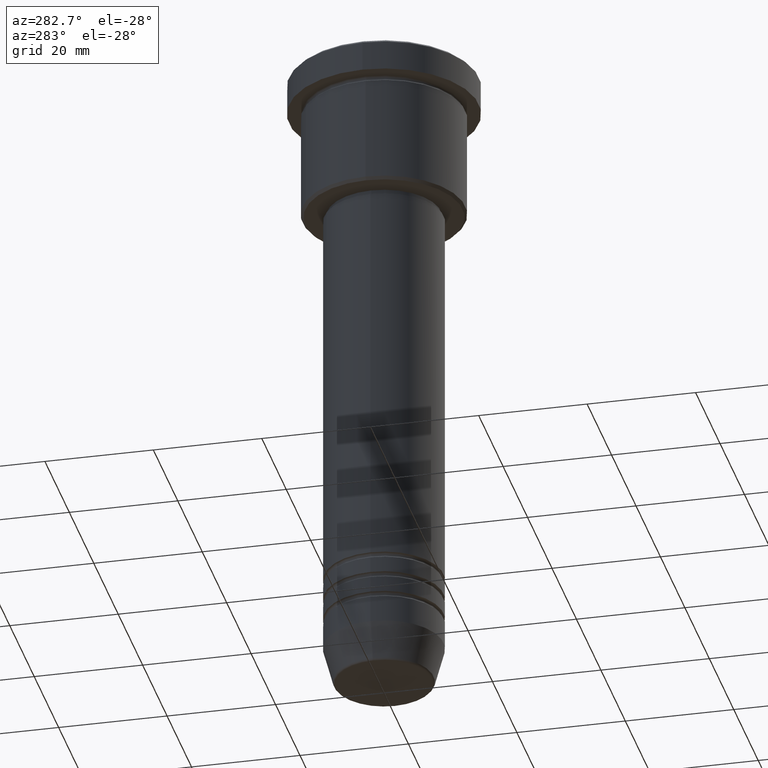
[diagram: clean part render]
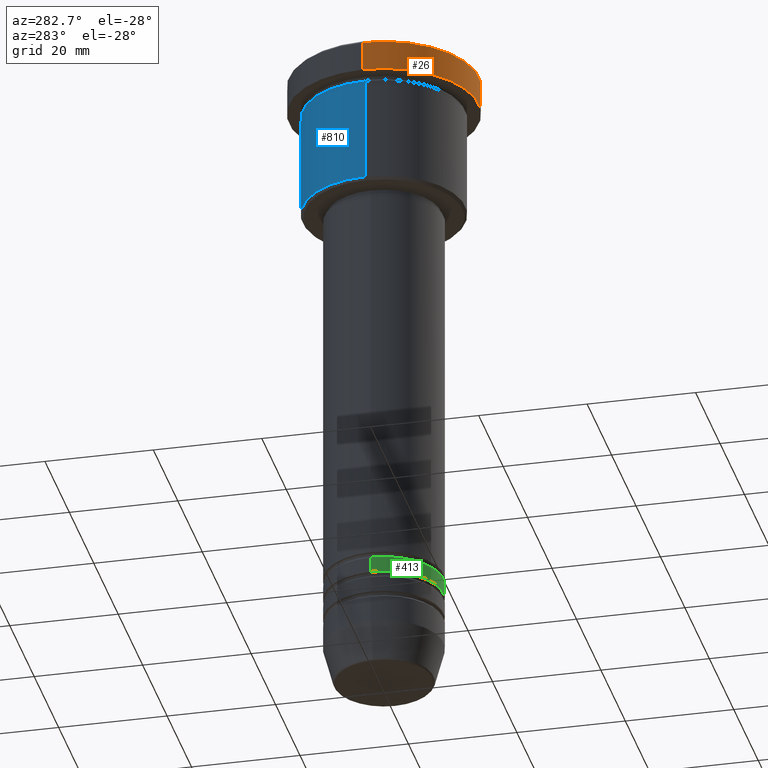
[diagram: same view with three faces highlighted in distinct colors, each labeled with its STEP entity id]
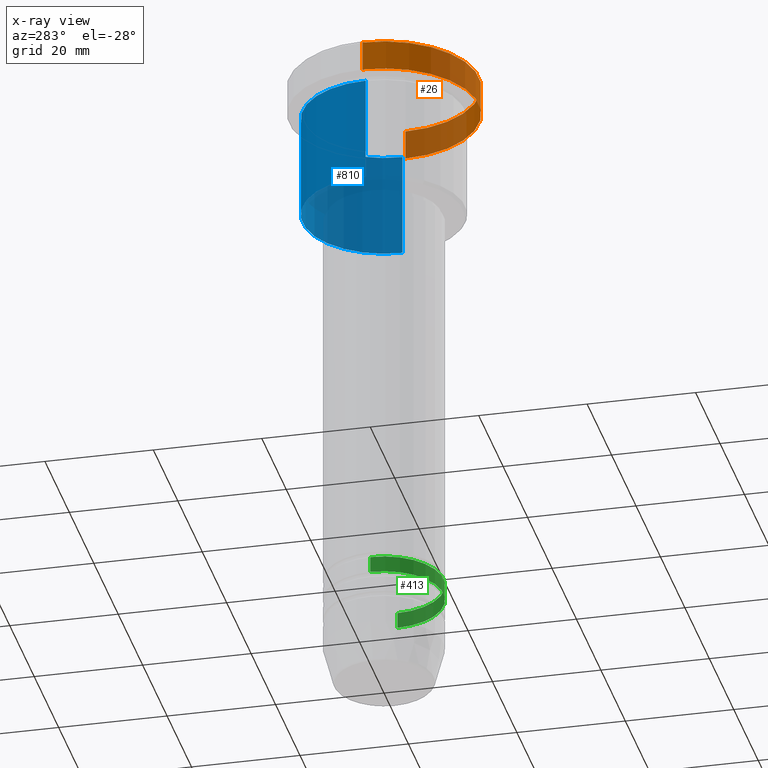
[diagram: x-ray of the same camera — body ghosted, the three highlighted faces saturated]
A machine part, auxiliary view with three faces highlighted in distinct colors.
The next image is the same camera in x-ray (body ghosted, the three faces saturated) — at least one of them is partly hidden behind the body in this view.
Their STEP definitions:

[orange] entity #26 — the highlighted cylindrical surface (partial cylindrical patch) has radius 17.5 mm, axis along (-0, -0, 1).
#5 = DIRECTION ( 'NONE',  ( -0.000000000000000000, -0.000000000000000000, 1.000000000000000000 ) ) ;
#25 = CARTESIAN_POINT ( 'NONE',  ( 17.50000000000000000, 0.000000000000000000, -5.999999999999995559 ) ) ;
#26 = ADVANCED_FACE ( 'NONE', ( #980 ), #165, .T. ) ;
#59 = CARTESIAN_POINT ( 'NONE',  ( -17.50000000000000000, 2.143131898507868248E-15, -5.999999999999995559 ) ) ;
#70 = AXIS2_PLACEMENT_3D ( 'NONE', #519, #228, #1147 ) ;
#72 = CARTESIAN_POINT ( 'NONE',  ( 17.50000000000000000, 0.000000000000000000, 0.000000000000000000 ) ) ;
#87 = EDGE_CURVE ( 'NONE', #558, #246, #186, .T. ) ;
#137 = CARTESIAN_POINT ( 'NONE',  ( -17.50000000000000000, 2.143131898507868248E-15, -0.5000000000000004441 ) ) ;
#156 = DIRECTION ( 'NONE',  ( -0.000000000000000000, -0.000000000000000000, 1.000000000000000000 ) ) ;
#165 = CYLINDRICAL_SURFACE ( 'NONE', #70, 17.50000000000000000 ) ;
#186 = LINE ( 'NONE', #713, #586 ) ;
#228 = DIRECTION ( 'NONE',  ( -0.000000000000000000, -0.000000000000000000, 1.000000000000000000 ) ) ;
#246 = VERTEX_POINT ( 'NONE', #137 ) ;
#351 = CARTESIAN_POINT ( 'NONE',  ( 0.000000000000000000, 0.000000000000000000, -0.5000000000000004441 ) ) ;
#372 = ORIENTED_EDGE ( 'NONE', *, *, #996, .T. ) ;
#419 = CIRCLE ( 'NONE', #694, 17.50000000000000000 ) ;
#452 = ORIENTED_EDGE ( 'NONE', *, *, #619, .T. ) ;
#460 = AXIS2_PLACEMENT_3D ( 'NONE', #351, #994, #839 ) ;
#470 = EDGE_CURVE ( 'NONE', #558, #1146, #419, .T. ) ;
#519 = CARTESIAN_POINT ( 'NONE',  ( 0.000000000000000000, 0.000000000000000000, 0.000000000000000000 ) ) ;
#524 = CARTESIAN_POINT ( 'NONE',  ( 17.50000000000000000, 0.000000000000000000, -0.5000000000000004441 ) ) ;
#558 = VERTEX_POINT ( 'NONE', #59 ) ;
#576 = DIRECTION ( 'NONE',  ( -0.000000000000000000, -0.000000000000000000, 1.000000000000000000 ) ) ;
#586 = VECTOR ( 'NONE', #5, 1000.000000000000000 ) ;
#619 = EDGE_CURVE ( 'NONE', #929, #246, #1151, .T. ) ;
#694 = AXIS2_PLACEMENT_3D ( 'NONE', #790, #576, #1154 ) ;
#713 = CARTESIAN_POINT ( 'NONE',  ( -17.50000000000000000, 2.143131898507868248E-15, 0.000000000000000000 ) ) ;
#749 = VECTOR ( 'NONE', #156, 1000.000000000000000 ) ;
#790 = CARTESIAN_POINT ( 'NONE',  ( 0.000000000000000000, 0.000000000000000000, -5.999999999999995559 ) ) ;
#839 = DIRECTION ( 'NONE',  ( 1.000000000000000000, 0.000000000000000000, 0.000000000000000000 ) ) ;
#874 = ORIENTED_EDGE ( 'NONE', *, *, #470, .T. ) ;
#911 = LINE ( 'NONE', #72, #749 ) ;
#929 = VERTEX_POINT ( 'NONE', #524 ) ;
#980 = FACE_OUTER_BOUND ( 'NONE', #1030, .T. ) ;
#994 = DIRECTION ( 'NONE',  ( 0.000000000000000000, 0.000000000000000000, -1.000000000000000000 ) ) ;
#996 = EDGE_CURVE ( 'NONE', #1146, #929, #911, .T. ) ;
#1026 = ORIENTED_EDGE ( 'NONE', *, *, #87, .F. ) ;
#1030 = EDGE_LOOP ( 'NONE', ( #1026, #874, #372, #452 ) ) ;
#1146 = VERTEX_POINT ( 'NONE', #25 ) ;
#1147 = DIRECTION ( 'NONE',  ( 1.000000000000000000, 0.000000000000000000, 0.000000000000000000 ) ) ;
#1151 = CIRCLE ( 'NONE', #460, 17.50000000000000000 ) ;
#1154 = DIRECTION ( 'NONE',  ( 1.000000000000000000, 0.000000000000000000, 0.000000000000000000 ) ) ;

[blue] entity #810 — the highlighted cylindrical surface (partial cylindrical patch) has radius 15 mm, axis along (-0, -0, 1).
#68 = CARTESIAN_POINT ( 'NONE',  ( 15.00000000000000000, 0.000000000000000000, -26.49999999999998224 ) ) ;
#85 = CIRCLE ( 'NONE', #493, 15.00000000000000000 ) ;
#113 = EDGE_CURVE ( 'NONE', #450, #899, #848, .T. ) ;
#145 = LINE ( 'NONE', #428, #984 ) ;
#226 = CARTESIAN_POINT ( 'NONE',  ( 15.00000000000000000, 0.000000000000000000, 0.000000000000000000 ) ) ;
#251 = CARTESIAN_POINT ( 'NONE',  ( 0.000000000000000000, 0.000000000000000000, -6.999999999999995559 ) ) ;
#255 = DIRECTION ( 'NONE',  ( -0.000000000000000000, -0.000000000000000000, 1.000000000000000000 ) ) ;
#287 = DIRECTION ( 'NONE',  ( -0.000000000000000000, -0.000000000000000000, 1.000000000000000000 ) ) ;
#300 = EDGE_CURVE ( 'NONE', #450, #641, #646, .T. ) ;
#360 = ORIENTED_EDGE ( 'NONE', *, *, #756, .T. ) ;
#428 = CARTESIAN_POINT ( 'NONE',  ( -15.00000000000000000, 1.836970198721029589E-15, 0.000000000000000000 ) ) ;
#450 = VERTEX_POINT ( 'NONE', #68 ) ;
#461 = DIRECTION ( 'NONE',  ( 1.000000000000000000, 0.000000000000000000, 0.000000000000000000 ) ) ;
#493 = AXIS2_PLACEMENT_3D ( 'NONE', #251, #717, #1158 ) ;
#531 = AXIS2_PLACEMENT_3D ( 'NONE', #913, #287, #461 ) ;
#532 = FACE_OUTER_BOUND ( 'NONE', #1110, .T. ) ;
#590 = ORIENTED_EDGE ( 'NONE', *, *, #113, .F. ) ;
#641 = VERTEX_POINT ( 'NONE', #784 ) ;
#646 = CIRCLE ( 'NONE', #903, 15.00000000000000000 ) ;
#668 = CARTESIAN_POINT ( 'NONE',  ( -15.00000000000000000, 1.836970198721029589E-15, -6.999999999999995559 ) ) ;
#708 = ORIENTED_EDGE ( 'NONE', *, *, #951, .F. ) ;
#717 = DIRECTION ( 'NONE',  ( -0.000000000000000000, -0.000000000000000000, 1.000000000000000000 ) ) ;
#756 = EDGE_CURVE ( 'NONE', #641, #888, #145, .T. ) ;
#784 = CARTESIAN_POINT ( 'NONE',  ( -15.00000000000000000, 1.836970198721029589E-15, -26.49999999999998224 ) ) ;
#810 = ADVANCED_FACE ( 'NONE', ( #532 ), #939, .T. ) ;
#838 = ORIENTED_EDGE ( 'NONE', *, *, #300, .T. ) ;
#848 = LINE ( 'NONE', #226, #1166 ) ;
#880 = CARTESIAN_POINT ( 'NONE',  ( 0.000000000000000000, 0.000000000000000000, -26.49999999999998224 ) ) ;
#888 = VERTEX_POINT ( 'NONE', #668 ) ;
#899 = VERTEX_POINT ( 'NONE', #1037 ) ;
#903 = AXIS2_PLACEMENT_3D ( 'NONE', #880, #255, #1071 ) ;
#913 = CARTESIAN_POINT ( 'NONE',  ( 0.000000000000000000, 0.000000000000000000, 0.000000000000000000 ) ) ;
#939 = CYLINDRICAL_SURFACE ( 'NONE', #531, 15.00000000000000000 ) ;
#951 = EDGE_CURVE ( 'NONE', #899, #888, #85, .T. ) ;
#984 = VECTOR ( 'NONE', #1141, 1000.000000000000000 ) ;
#1037 = CARTESIAN_POINT ( 'NONE',  ( 15.00000000000000000, 0.000000000000000000, -6.999999999999995559 ) ) ;
#1071 = DIRECTION ( 'NONE',  ( -1.000000000000000000, 0.000000000000000000, 0.000000000000000000 ) ) ;
#1075 = DIRECTION ( 'NONE',  ( -0.000000000000000000, -0.000000000000000000, 1.000000000000000000 ) ) ;
#1110 = EDGE_LOOP ( 'NONE', ( #838, #360, #708, #590 ) ) ;
#1141 = DIRECTION ( 'NONE',  ( -0.000000000000000000, -0.000000000000000000, 1.000000000000000000 ) ) ;
#1158 = DIRECTION ( 'NONE',  ( 1.000000000000000000, 0.000000000000000000, 0.000000000000000000 ) ) ;
#1166 = VECTOR ( 'NONE', #1075, 1000.000000000000000 ) ;

[green] entity #413 — the highlighted cylindrical surface (partial cylindrical patch) has radius 11 mm, axis along (-0, -0, 1).
#78 = ORIENTED_EDGE ( 'NONE', *, *, #636, .F. ) ;
#110 = CYLINDRICAL_SURFACE ( 'NONE', #807, 11.00000000000000178 ) ;
#115 = ORIENTED_EDGE ( 'NONE', *, *, #167, .F. ) ;
#130 = DIRECTION ( 'NONE',  ( -0.000000000000000000, -0.000000000000000000, 1.000000000000000000 ) ) ;
#150 = DIRECTION ( 'NONE',  ( -0.000000000000000000, -0.000000000000000000, 1.000000000000000000 ) ) ;
#167 = EDGE_CURVE ( 'NONE', #536, #530, #575, .T. ) ;
#176 = CARTESIAN_POINT ( 'NONE',  ( 11.00000000000000355, 0.000000000000000000, -104.9999999999999147 ) ) ;
#183 = CARTESIAN_POINT ( 'NONE',  ( 11.00000000000000000, 0.000000000000000000, -101.9999999999999005 ) ) ;
#194 = CARTESIAN_POINT ( 'NONE',  ( -11.00000000000000355, 1.347111479062088996E-15, -104.9999999999999147 ) ) ;
#252 = EDGE_LOOP ( 'NONE', ( #115, #298, #456, #78 ) ) ;
#296 = FACE_OUTER_BOUND ( 'NONE', #252, .T. ) ;
#298 = ORIENTED_EDGE ( 'NONE', *, *, #978, .T. ) ;
#299 = DIRECTION ( 'NONE',  ( -0.000000000000000000, -0.000000000000000000, 1.000000000000000000 ) ) ;
#308 = VECTOR ( 'NONE', #130, 1000.000000000000000 ) ;
#334 = EDGE_CURVE ( 'NONE', #683, #772, #430, .T. ) ;
#389 = CARTESIAN_POINT ( 'NONE',  ( 0.000000000000000000, 0.000000000000000000, -101.9999999999999005 ) ) ;
#390 = CARTESIAN_POINT ( 'NONE',  ( 0.000000000000000000, 0.000000000000000000, 0.000000000000000000 ) ) ;
#413 = ADVANCED_FACE ( 'NONE', ( #296 ), #110, .T. ) ;
#430 = LINE ( 'NONE', #594, #889 ) ;
#456 = ORIENTED_EDGE ( 'NONE', *, *, #334, .T. ) ;
#474 = CIRCLE ( 'NONE', #865, 11.00000000000000000 ) ;
#476 = DIRECTION ( 'NONE',  ( -0.000000000000000000, -0.000000000000000000, 1.000000000000000000 ) ) ;
#530 = VERTEX_POINT ( 'NONE', #1161 ) ;
#536 = VERTEX_POINT ( 'NONE', #194 ) ;
#575 = LINE ( 'NONE', #955, #308 ) ;
#594 = CARTESIAN_POINT ( 'NONE',  ( 11.00000000000000178, 0.000000000000000000, 0.000000000000000000 ) ) ;
#636 = EDGE_CURVE ( 'NONE', #530, #772, #474, .T. ) ;
#652 = CIRCLE ( 'NONE', #923, 11.00000000000000355 ) ;
#683 = VERTEX_POINT ( 'NONE', #176 ) ;
#772 = VERTEX_POINT ( 'NONE', #183 ) ;
#797 = DIRECTION ( 'NONE',  ( -0.000000000000000000, -0.000000000000000000, 1.000000000000000000 ) ) ;
#807 = AXIS2_PLACEMENT_3D ( 'NONE', #390, #476, #849 ) ;
#849 = DIRECTION ( 'NONE',  ( 1.000000000000000000, 0.000000000000000000, 0.000000000000000000 ) ) ;
#865 = AXIS2_PLACEMENT_3D ( 'NONE', #389, #299, #938 ) ;
#889 = VECTOR ( 'NONE', #150, 1000.000000000000000 ) ;
#923 = AXIS2_PLACEMENT_3D ( 'NONE', #1177, #797, #1002 ) ;
#938 = DIRECTION ( 'NONE',  ( 1.000000000000000000, 0.000000000000000000, 0.000000000000000000 ) ) ;
#955 = CARTESIAN_POINT ( 'NONE',  ( -11.00000000000000178, 1.347111479062088602E-15, 0.000000000000000000 ) ) ;
#978 = EDGE_CURVE ( 'NONE', #536, #683, #652, .T. ) ;
#1002 = DIRECTION ( 'NONE',  ( 1.000000000000000000, 0.000000000000000000, 0.000000000000000000 ) ) ;
#1161 = CARTESIAN_POINT ( 'NONE',  ( -11.00000000000000000, 1.347111479062088602E-15, -101.9999999999999005 ) ) ;
#1177 = CARTESIAN_POINT ( 'NONE',  ( 0.000000000000000000, 0.000000000000000000, -104.9999999999999147 ) ) ;